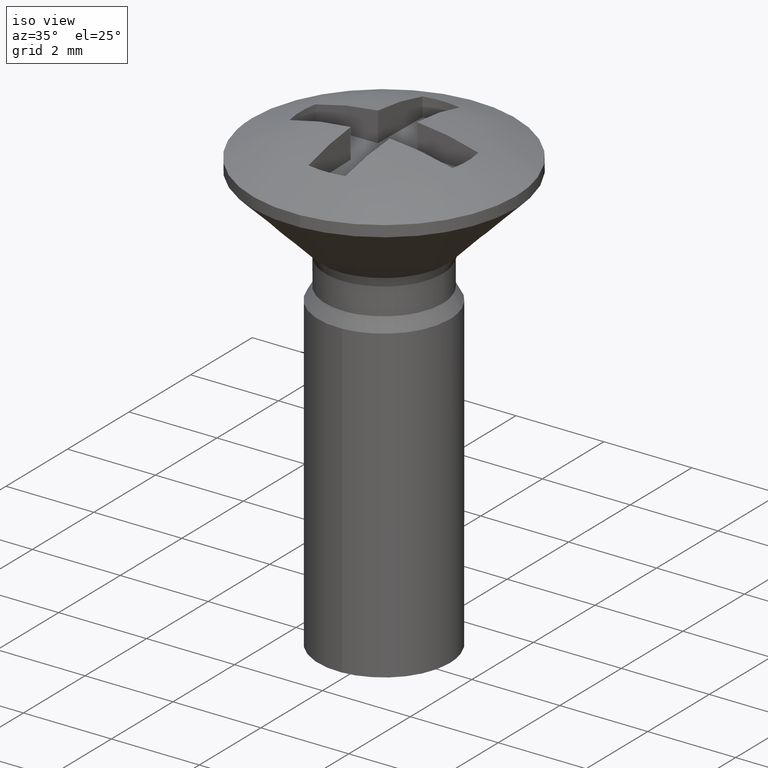
[diagram: clean part render]
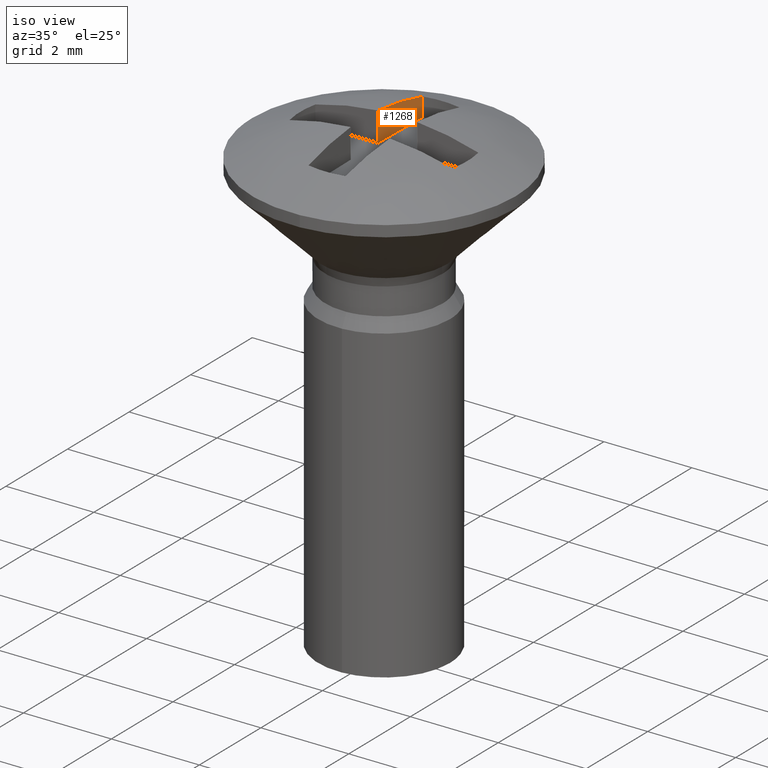
[diagram: same view with one face highlighted and labeled with its STEP entity id]
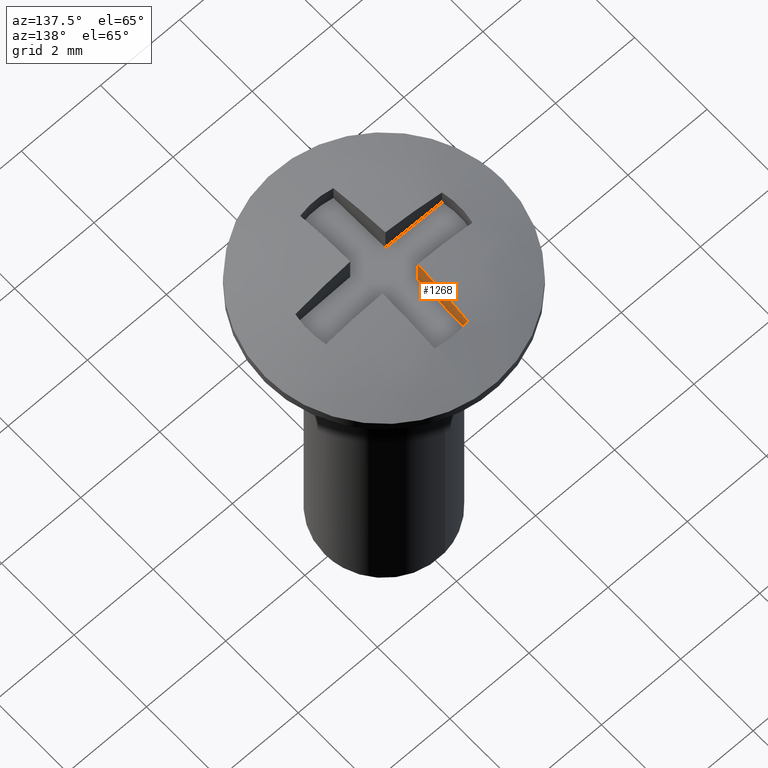
[diagram: same view with one face highlighted and labeled with its STEP entity id]
A machine part, iso view. The second image highlights one B-rep face of the part: STEP entity #1268.
A second angle (auxiliary view) of the same face is appended — the face is thin or edge-on in the first view.
In plain terms, the highlighted face is a freeform B-spline surface patch.
Its self-contained STEP definition (entity closure, byte-faithful):
#1061=CARTESIAN_POINT('',(-0.420000000000009,1.853000000000110,0.0));
#1062=VERTEX_POINT('',#1061);
#1076=CARTESIAN_POINT('',(-0.444514109473131,0.443438705295617,0.0));
#1077=VERTEX_POINT('',#1076);
#1078=CARTESIAN_POINT('',(-0.444514109473131,0.443438705295617,0.0));
#1079=CARTESIAN_POINT('',(-0.420000000000009,1.853000000000110,0.0));
#1080=QUASI_UNIFORM_CURVE('',1,(#1078,#1079),.UNSPECIFIED.,.F.,.U.);
#1081=EDGE_CURVE('',#1077,#1062,#1080,.T.);
#1214=CARTESIAN_POINT('',(-0.420000000000009,1.853000000000110,0.428274669148076));
#1215=VERTEX_POINT('',#1214);
#1216=CARTESIAN_POINT('',(-0.420000000000009,1.853000000000110,0.428274669148076));
#1217=CARTESIAN_POINT('',(-0.420000000000009,1.853000000000110,0.0));
#1218=QUASI_UNIFORM_CURVE('',1,(#1216,#1217),.UNSPECIFIED.,.F.,.U.);
#1219=EDGE_CURVE('',#1215,#1062,#1218,.T.);
#1239=CARTESIAN_POINT('',(-0.418775519358856,1.923407636866408,-0.033509370554167));
#1240=CARTESIAN_POINT('',(-0.445738589895111,0.373031081031779,-0.033509370554167));
#1241=CARTESIAN_POINT('',(-0.418775519358856,1.923407636866408,0.704367683931791));
#1242=CARTESIAN_POINT('',(-0.445738589895111,0.373031081031779,0.704367683931791));
#1243=B_SPLINE_SURFACE_WITH_KNOTS('',1,1,((#1239,#1241),(#1240,#1242)),.UNSPECIFIED.,.F.,.F.,.U.,(2,2),(2,2),(0.041708303657547,0.958291688891873),(0.041708334948495,0.958291687403247),.UNSPECIFIED.);
#1244=CARTESIAN_POINT('',(-0.444514109473131,0.443438705295617,0.670858295383802));
#1245=VERTEX_POINT('',#1244);
#1246=CARTESIAN_POINT('',(-0.420000000000009,1.853000000000110,0.428274669148076));
#1247=CARTESIAN_POINT('',(-0.432032758358660,1.161116394377664,0.624528958286575));
#1248=CARTESIAN_POINT('',(-0.444514109473131,0.443438705295617,0.670858295383802));
#1256=(BOUNDED_CURVE()B_SPLINE_CURVE(2,(#1246,#1247,#1248),.UNSPECIFIED.,.F.,.U.)CURVE()GEOMETRIC_REPRESENTATION_ITEM()QUASI_UNIFORM_CURVE()RATIONAL_B_SPLINE_CURVE((1.0,0.994392651648375,1.0))REPRESENTATION_ITEM(''));
#1257=EDGE_CURVE('',#1215,#1245,#1256,.T.);
#1258=ORIENTED_EDGE('',*,*,#1257,.T.);
#1259=CARTESIAN_POINT('',(-0.444514109473131,0.443438705295617,0.670858295383802));
#1260=CARTESIAN_POINT('',(-0.444514109473131,0.443438705295617,0.0));
#1261=QUASI_UNIFORM_CURVE('',1,(#1259,#1260),.UNSPECIFIED.,.F.,.U.);
#1262=EDGE_CURVE('',#1245,#1077,#1261,.T.);
#1263=ORIENTED_EDGE('',*,*,#1262,.T.);
#1264=ORIENTED_EDGE('',*,*,#1081,.T.);
#1265=ORIENTED_EDGE('',*,*,#1219,.F.);
#1266=EDGE_LOOP('',(#1258,#1263,#1264,#1265));
#1267=FACE_OUTER_BOUND('',#1266,.T.);
#1268=ADVANCED_FACE('',(#1267),#1243,.F.);